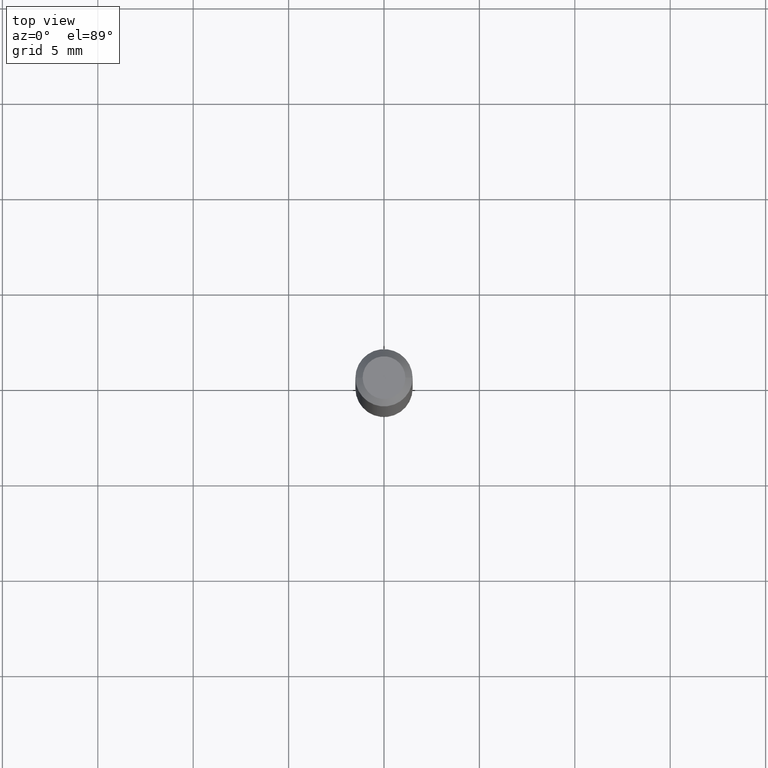
[diagram: clean part render]
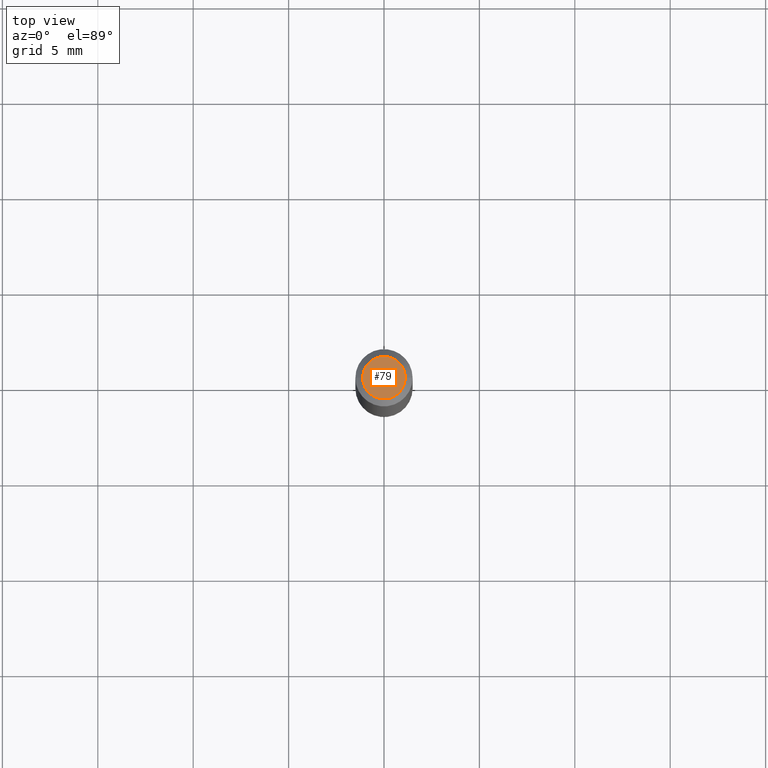
[diagram: same view with one face highlighted and labeled with its STEP entity id]
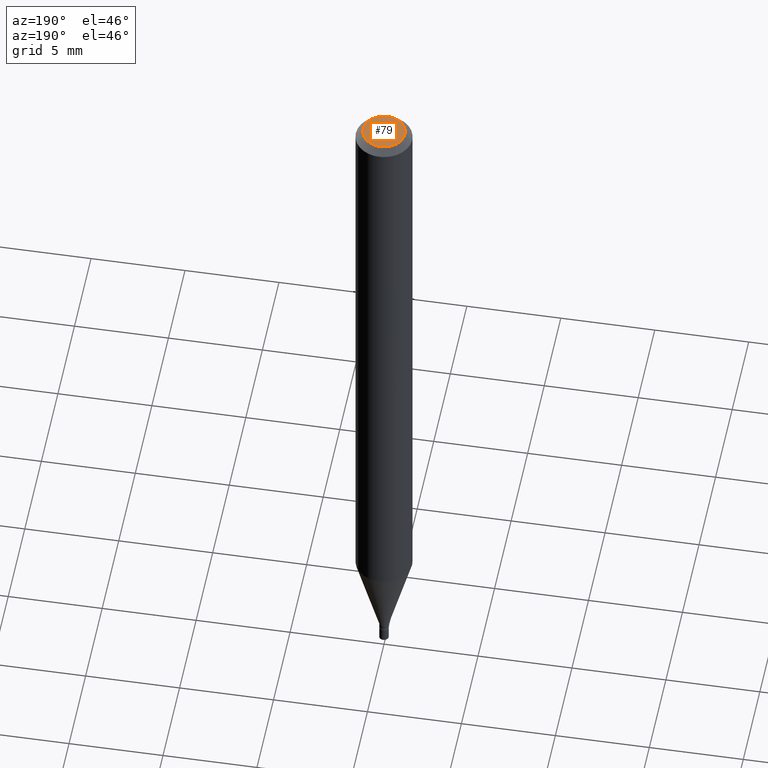
[diagram: same view with one face highlighted and labeled with its STEP entity id]
A machine part, top view. The second image highlights one B-rep face of the part: STEP entity #79.
A second angle (auxiliary view) of the same face is appended — the face is thin or edge-on in the first view.
In plain terms, the highlighted planar face has unit normal (0, -0, -1).
Its self-contained STEP definition (entity closure, byte-faithful):
#1 = DIRECTION ( 'NONE',  ( -1.000000000000000000, 6.982962677686265922E-15, -4.876176775795935793E-29 ) ) ;
#15 = ORIENTED_EDGE ( 'NONE', *, *, #271, .T. ) ;
#51 = CIRCLE ( 'NONE', #347, 0.04404999999999999888 ) ;
#70 = CARTESIAN_POINT ( 'NONE',  ( -0.04404999999999999888, 3.337856159934048437E-16, 8.332887894987363815E-16 ) ) ;
#76 = CARTESIAN_POINT ( 'NONE',  ( 3.075995059520799729E-16, 0.04404999999999999888, 2.628446417733287467E-16 ) ) ;
#79 = ADVANCED_FACE ( 'NONE', ( #465 ), #394, .F. ) ;
#134 = CARTESIAN_POINT ( 'NONE',  ( -2.037781741262937917E-44, 2.909412258402039979E-30, 8.332887894987386495E-16 ) ) ;
#164 = AXIS2_PLACEMENT_3D ( 'NONE', #76, #218, #1 ) ;
#168 = CIRCLE ( 'NONE', #233, 0.04404999999999999888 ) ;
#218 = DIRECTION ( 'NONE',  ( 2.438088387897960049E-29, -3.491481338843145188E-15, -1.000000000000000000 ) ) ;
#233 = AXIS2_PLACEMENT_3D ( 'NONE', #407, #366, #267 ) ;
#267 = DIRECTION ( 'NONE',  ( 1.000000000000000000, -6.982962677686265922E-15, 4.957392940945096353E-29 ) ) ;
#271 = EDGE_CURVE ( 'NONE', #410, #315, #168, .T. ) ;
#283 = EDGE_LOOP ( 'NONE', ( #15, #303 ) ) ;
#303 = ORIENTED_EDGE ( 'NONE', *, *, #408, .T. ) ;
#312 = DIRECTION ( 'NONE',  ( 1.000000000000000000, -6.982962677686265922E-15, 4.957392940945096353E-29 ) ) ;
#315 = VERTEX_POINT ( 'NONE', #375 ) ;
#347 = AXIS2_PLACEMENT_3D ( 'NONE', #134, #436, #312 ) ;
#366 = DIRECTION ( 'NONE',  ( -2.445468806185136597E-29, 3.491481338843145583E-15, 1.000000000000000000 ) ) ;
#375 = CARTESIAN_POINT ( 'NONE',  ( 0.04404999999999999888, -3.798447818264445781E-16, 8.332887894987410161E-16 ) ) ;
#394 = PLANE ( 'NONE',  #164 ) ;
#407 = CARTESIAN_POINT ( 'NONE',  ( -2.037781741262937917E-44, 2.909412258402039979E-30, 8.332887894987386495E-16 ) ) ;
#408 = EDGE_CURVE ( 'NONE', #315, #410, #51, .T. ) ;
#410 = VERTEX_POINT ( 'NONE', #70 ) ;
#436 = DIRECTION ( 'NONE',  ( -2.445468806185136597E-29, 3.491481338843145583E-15, 1.000000000000000000 ) ) ;
#465 = FACE_OUTER_BOUND ( 'NONE', #283, .T. ) ;